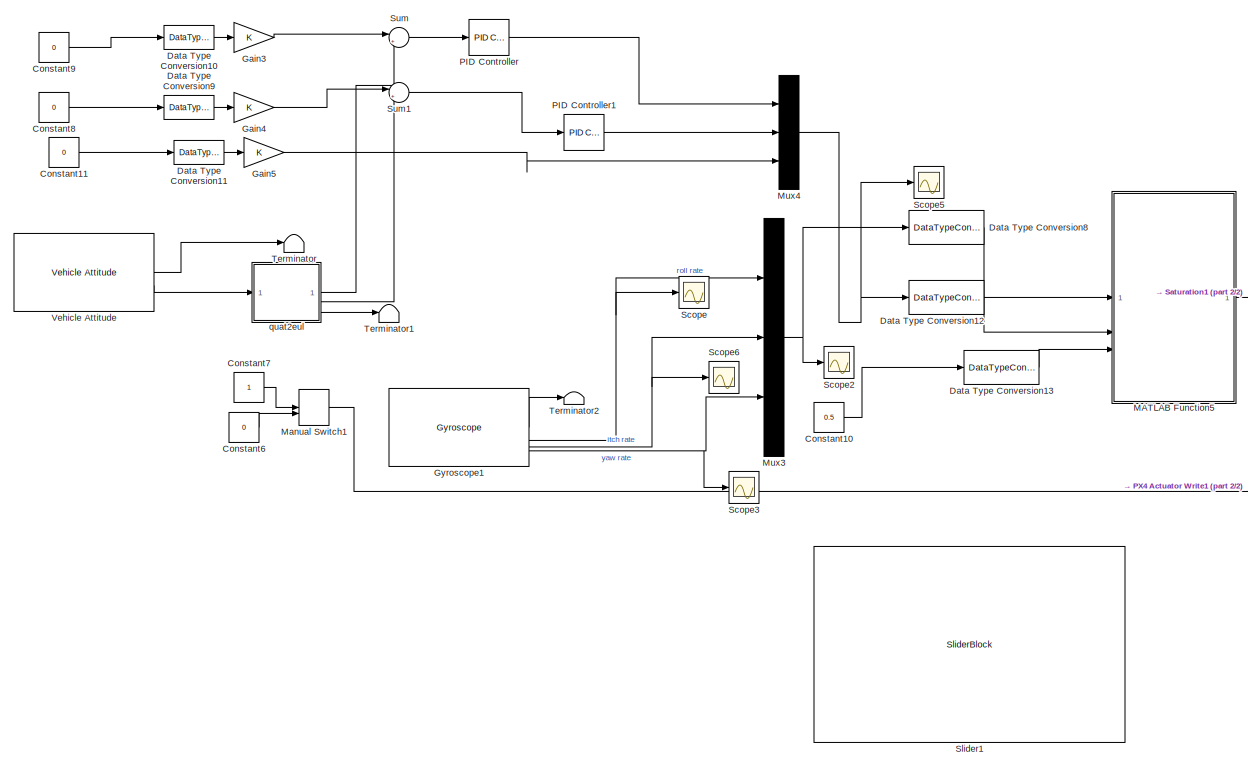
[diagram: root canvas - part 1/2, center side, full height]
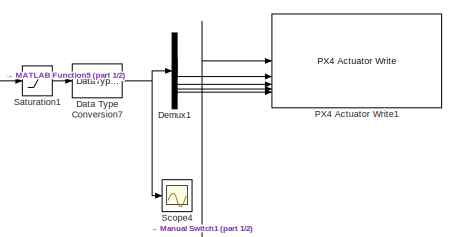
[diagram: root canvas - part 2/2, middle right region]
MODEL slx_2880800d65d6
KIND model
CONFIG AbsTol = auto
CONFIG EnableMultiTasking = on
CONFIG FixedStep = auto
CONFIG MaxStep = auto
CONFIG MinStep = auto
CONFIG PreLoadFcn = SampleTime = 1e-3;\nisUsingSimulinkMixer=true;\n
CONFIG RelTol = 1e-3
CONFIG SampleTimeConstraint = Unconstrained
CONFIG SolverName = FixedStepAuto
CONFIG StartTime = 0.0
CONFIG StopTime = inf
BLOCK [Constant] Constant10
  Value = 0.5
BLOCK [Constant] Constant11
  Value = 0
BLOCK [Constant] Constant6
  OutDataTypeStr = boolean
  Value = 0
BLOCK [Constant] Constant7
  OutDataTypeStr = boolean
BLOCK [Constant] Constant8
  Value = 0
BLOCK [Constant] Constant9
  Value = 0
BLOCK [DataTypeConversion] Data Type Conversion10
  OutDataTypeStr = single
  RndMeth = Floor
  SaturateOnIntegerOverflow = off
BLOCK [DataTypeConversion] Data Type Conversion11
  OutDataTypeStr = single
  RndMeth = Floor
  SaturateOnIntegerOverflow = off
BLOCK [DataTypeConversion] Data Type Conversion12
  LockScale = on
  OutDataTypeStr = double
  RndMeth = Floor
  SaturateOnIntegerOverflow = off
BLOCK [DataTypeConversion] Data Type Conversion13
  LockScale = on
  OutDataTypeStr = double
  RndMeth = Floor
  SaturateOnIntegerOverflow = off
BLOCK [DataTypeConversion] Data Type Conversion7
  OutDataTypeStr = single
  RndMeth = Floor
  SaturateOnIntegerOverflow = off
BLOCK [DataTypeConversion] Data Type Conversion8
  LockScale = on
  OutDataTypeStr = double
  RndMeth = Floor
  SaturateOnIntegerOverflow = off
BLOCK [DataTypeConversion] Data Type Conversion9
  OutDataTypeStr = single
  RndMeth = Floor
  SaturateOnIntegerOverflow = off
BLOCK [Demux] Demux1
BLOCK [Gain] Gain3
BLOCK [Gain] Gain4
BLOCK [Gain] Gain5
BLOCK [Reference] Gyroscope1  REF=px4Sensorslib/Gyroscope
  SourceBlock = px4Sensorslib/Gyroscope
  SourceType = PX4 Gyroscope
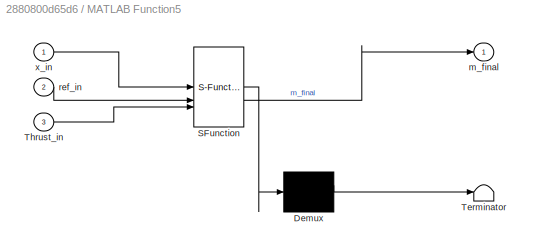
BLOCK [SubSystem] MATLAB Function5
  ErrorFcn = Stateflow.Translate.translate
  PermitHierarchicalResolution = ExplicitOnly
  SFBlockType = MATLAB Function
  TreatAsAtomicUnit = on
BLOCK [Demux] MATLAB Function5/ Demux 
  Outputs = 1
BLOCK [S-Function] MATLAB Function5/ SFunction 
  EnableBusSupport = off
  FunctionName = sf_sfun
  PortCounts = [3 2]
  SFcnIsStateOwnerBlock = off
  SFunctionDeploymentMode = off
  Tag = Stateflow S-Function 6
BLOCK [Terminator] MATLAB Function5/ Terminator 
BLOCK [Inport] MATLAB Function5/Thrust_in
  Port = 3
BLOCK [Outport] MATLAB Function5/m_final
  VectorParamsAs1DForOutWhenUnconnected = off
BLOCK [Inport] MATLAB Function5/ref_in
  Port = 2
BLOCK [Inport] MATLAB Function5/x_in
BLOCK [ManualSwitch] Manual Switch1
BLOCK [Mux] Mux3
  DisplayOption = bar
  Inputs = 3
BLOCK [Mux] Mux4
  DisplayOption = bar
  Inputs = 3
BLOCK [Reference] PID Controller  REF=slpidlib/PID Controller
  LibrarySourceBlock = simulink/Continuous/PID Controller
  SourceBlock = slpidlib/PID Controller
  SourceType = PID 1dof
BLOCK [Reference] PID Controller1  REF=slpidlib/PID Controller
  LibrarySourceBlock = simulink/Continuous/PID Controller
  SourceBlock = slpidlib/PID Controller
  SourceType = PID 1dof
BLOCK [Reference] PX4 Actuator Write1  REF=px4Peripheralslib/PX4 Actuator Write
  SourceBlock = px4Peripheralslib/PX4 Actuator Write
  SourceType = px4.internal.block.PX4Actuators
BLOCK [Saturate] Saturation1
  LowerLimit = 0
  UpperLimit = 1
BLOCK [Scope] Scope
  ActiveDisplayYMaximum = 0.043675837107002735
  ActiveDisplayYMinimum = -0.048647073097527027
  Floating = off
  GraphicalSettings = {"Style":{"BackgroundColor":[0.12941176470588237,0.12941176470588237,0.12941176470588237],"AxesColor":[0.07058823529411765,0.07058823529411765,0.07058823529411765],"LabelsColor":[0.8509803921568627,0.8509803921568627,0.8509803921568627],"PreserveColors":false,"Visible":[true],"LineStyle":["-"],"LineWidth":[1.5],"BarWidth":[0.9],"LineColor":["auto"],"LineFaceAlpha":[1],"LineEdgeAlpha":[1],"Marker":...<+2012ch>
  MultipleDisplayCache = [{"MaxYLimMag":0.048647073097527027,"MaxYLimReal":0.043675837107002735,"MinYLimMag":0,"MinYLimReal":-0.048647073097527027,"PlotAsMagnitudePhase":false,"ShowGrid":true,"ShowLegend":false,"Title":"%<SignalLabel>","YLabel":""}]
  NumInputPorts = 1
  ScopeFrameLocation = window
  WasSavedAsWebScope = on
  WindowPosition = [1183.000000,330.000000,560.000000,420.000000,]
BLOCK [Scope] Scope2
  ActiveDisplayYMaximum = 0.55083355307579041
  ActiveDisplayYMinimum = -0.62053689360618591
  DataLoggingVariableName = ScopeData1
  Floating = off
  GraphicalSettings = {"AxesScalingProperties":{"AlignXAxis":"Center","AlignYAxis":"Center","AutoScaleXAxisLimits":false,"AxesScaling":"Manual","AxesScalingNumUpdates":10,"ExpandOnly":true,"ScaleAxesLimitsAtStop":false,"XAxisDataRange":100,"YAxisDataRange":80},"DisplayProperties":{"ColorOrder":["auto","auto","auto","auto","auto","auto","auto","auto","auto","auto","auto","auto","auto","auto","auto","auto","auto","auto",...<+2509ch>
  MultipleDisplayCache = [{"MaxYLimMag":0.62053689360618591,"MaxYLimReal":0.55083355307579041,"MinYLimMag":0,"MinYLimReal":-0.62053689360618591,"PlotAsMagnitudePhase":false,"ShowGrid":true,"ShowLegend":false,"Title":"%<SignalLabel>","YLabel":""}]
  NumInputPorts = 1
  ScopeFrameLocation = window
  WasSavedAsWebScope = on
  WindowPosition = [680.000000,330.000000,560.000000,420.000000,]
BLOCK [Scope] Scope3
  ActiveDisplayYMaximum = 1
  ActiveDisplayYMinimum = -1
  DataLoggingVariableName = ScopeData3
  Floating = off
  GraphicalSettings = {"Style":{"BackgroundColor":[0.12941176470588237,0.12941176470588237,0.12941176470588237],"AxesColor":[0.07058823529411765,0.07058823529411765,0.07058823529411765],"LabelsColor":[0.8509803921568627,0.8509803921568627,0.8509803921568627],"PreserveColors":false,"Visible":[true],"LineStyle":["-"],"LineWidth":[1.5],"BarWidth":[0.9],"LineColor":["auto"],"LineFaceAlpha":[1],"LineEdgeAlpha":[1],"Marker":...<+1904ch>
  MultipleDisplayCache = [{"MaxYLimMag":1,"MaxYLimReal":1,"MinYLimMag":0,"MinYLimReal":-1,"PlotAsMagnitudePhase":false,"ShowGrid":true,"ShowLegend":false,"Title":"%<SignalLabel>","YLabel":""}]
  NumInputPorts = 1
  ScopeFrameLocation = window
  WasSavedAsWebScope = on
  WindowPosition = [680.000000,330.000000,560.000000,420.000000,]
BLOCK [Scope] Scope4
  ActiveDisplayYMaximum = 0.55490137269269046
  ActiveDisplayYMinimum = 0.057510972242240666
  ContainerLayout = {"WindowBounds":[2217,110,1312,848]}
  DataLoggingVariableName = ScopeData4
  Floating = off
  GraphicalSettings = {"AxesScalingProperties":{"AlignXAxis":"Center","AlignYAxis":"Center","AutoScaleXAxisLimits":false,"AxesScaling":"Manual","AxesScalingNumUpdates":10,"ExpandOnly":true,"ScaleAxesLimitsAtStop":false,"XAxisDataRange":100,"YAxisDataRange":80},"DisplayProperties":{"ColorOrder":["auto","auto","auto","auto","auto","auto","auto","auto","auto","auto","auto","auto","auto","auto","auto","auto","auto","auto",...<+2489ch>
  MultipleDisplayCache = [{"MaxYLimMag":0.68056044727563858,"MaxYLimReal":0.55490137269269046,"MinYLimMag":0,"MinYLimReal":0.057510972242240666,"PlotAsMagnitudePhase":false,"ShowGrid":true,"ShowLegend":true,"Title":"%<SignalLabel>","YLabel":""}]
  NumInputPorts = 1
  ScopeFrameLocation = container
  ShowLegend = on
  WasSavedAsWebScope = on
  WindowPosition = [2217.000000,122.000000,1312.000000,848.000000,]
BLOCK [Scope] Scope5
  ActiveDisplayYMaximum = 4.6404233658291121
  ActiveDisplayYMinimum = -3.3246570702222038
  DataLoggingVariableName = ScopeData5
  Floating = off
  GraphicalSettings = {"AxesScalingProperties":{"AlignXAxis":"Center","AlignYAxis":"Center","AutoScaleXAxisLimits":false,"AxesScaling":"Manual","AxesScalingNumUpdates":10,"ExpandOnly":true,"ScaleAxesLimitsAtStop":false,"XAxisDataRange":100,"YAxisDataRange":80},"DisplayProperties":{"ColorOrder":["auto","auto","auto","auto","auto","auto","auto","auto","auto","auto","auto","auto","auto","auto","auto","auto","auto","auto",...<+2119ch>
  MultipleDisplayCache = [{"MaxYLimMag":3.9174287915229797,"MaxYLimReal":4.6404233658291121,"MinYLimMag":0,"MinYLimReal":-3.3246570702222038,"PlotAsMagnitudePhase":false,"ShowGrid":true,"ShowLegend":false,"Title":"%<SignalLabel>","YLabel":""}]
  NumInputPorts = 1
  ScopeFrameLocation = window
  WasSavedAsWebScope = on
  WindowPosition = [1.000000,41.000000,1920.000000,1017.000000,]
BLOCK [Scope] Scope6
  ActiveDisplayYMaximum = 1
  ActiveDisplayYMinimum = -1
  DataLoggingVariableName = ScopeData6
  Floating = off
  GraphicalSettings = {"Style":{"BackgroundColor":[0.12941176470588237,0.12941176470588237,0.12941176470588237],"AxesColor":[0.07058823529411765,0.07058823529411765,0.07058823529411765],"LabelsColor":[0.8509803921568627,0.8509803921568627,0.8509803921568627],"PreserveColors":false,"Visible":[true],"LineStyle":["-"],"LineWidth":[1.5],"BarWidth":[0.9],"LineColor":["auto"],"LineFaceAlpha":[1],"LineEdgeAlpha":[1],"Marker":...<+1908ch>
  MultipleDisplayCache = [{"MaxYLimMag":1,"MaxYLimReal":1,"MinYLimMag":0,"MinYLimReal":-1,"PlotAsMagnitudePhase":false,"ShowGrid":true,"ShowLegend":false,"Title":"%<SignalLabel>","YLabel":""}]
  NumInputPorts = 1
  ScopeFrameLocation = window
  WasSavedAsWebScope = on
  WindowPosition = [680.000000,330.000000,560.000000,420.000000,]
BLOCK [SliderBlock] Slider1
  ScaleMax = 0.6
BLOCK [Sum] Sum
  Inputs = |+-
BLOCK [Sum] Sum1
  Inputs = |+-
BLOCK [Terminator] Terminator
BLOCK [Terminator] Terminator1
BLOCK [Terminator] Terminator2
BLOCK [Reference] Vehicle Attitude  REF=px4Sensorslib/Vehicle Attitude
  SourceBlock = px4Sensorslib/Vehicle Attitude
  SourceType = PX4 Vehicle Attitude
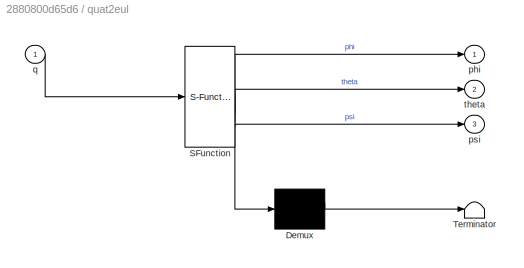
BLOCK [SubSystem] quat2eul
  ErrorFcn = Stateflow.Translate.translate
  PermitHierarchicalResolution = ExplicitOnly
  SFBlockType = MATLAB Function
  TreatAsAtomicUnit = on
BLOCK [Demux] quat2eul/ Demux 
  Outputs = 1
BLOCK [S-Function] quat2eul/ SFunction 
  EnableBusSupport = off
  FunctionName = sf_sfun
  PortCounts = [1 4]
  SFcnIsStateOwnerBlock = off
  SFunctionDeploymentMode = off
  Tag = Stateflow S-Function 10
BLOCK [Terminator] quat2eul/ Terminator 
BLOCK [Outport] quat2eul/phi
  VectorParamsAs1DForOutWhenUnconnected = off
BLOCK [Outport] quat2eul/psi
  Port = 3
  VectorParamsAs1DForOutWhenUnconnected = off
BLOCK [Inport] quat2eul/q
BLOCK [Outport] quat2eul/theta
  Port = 2
  VectorParamsAs1DForOutWhenUnconnected = off
LINE Constant10:1 -> Data Type Conversion13:1
LINE Constant11:1 -> Data Type Conversion11:1
LINE Constant6:1 -> Manual Switch1:2
LINE Constant7:1 -> Manual Switch1:1
LINE Constant8:1 -> Data Type Conversion9:1
LINE Constant9:1 -> Data Type Conversion10:1
LINE Data Type Conversion10:1 -> Gain3:1
LINE Data Type Conversion11:1 -> Gain5:1
LINE Data Type Conversion12:1 -> MATLAB Function5:2
LINE Data Type Conversion13:1 -> MATLAB Function5:3
NET Data Type Conversion7:1 -> Demux1:1, Scope4:1
LINE Data Type Conversion8:1 -> MATLAB Function5:1
LINE Data Type Conversion9:1 -> Gain4:1
LINE Demux1:1 -> PX4 Actuator Write1:2
LINE Demux1:2 -> PX4 Actuator Write1:3
LINE Demux1:3 -> PX4 Actuator Write1:4
LINE Demux1:4 -> PX4 Actuator Write1:5
LINE Gain3:1 -> Sum:1
LINE Gain4:1 -> Sum1:1
LINE Gain5:1 -> Mux4:3
LINE Gyroscope1:1 -> Terminator2:1
NET Gyroscope1:2 -> Mux3:1, Scope:1
NET Gyroscope1:3 -> Mux3:2, Scope6:1
NET Gyroscope1:4 -> Mux3:3, Scope3:1
LINE MATLAB Function5:1 -> Saturation1:1
LINE Manual Switch1:1 -> PX4 Actuator Write1:1
NET Mux3:1 -> Data Type Conversion8:1, Scope2:1
NET Mux4:1 -> Data Type Conversion12:1, Scope5:1
LINE PID Controller1:1 -> Mux4:2
LINE PID Controller:1 -> Mux4:1
LINE Saturation1:1 -> Data Type Conversion7:1
LINE Sum1:1 -> PID Controller1:1
LINE Sum:1 -> PID Controller:1
LINE Vehicle Attitude:1 -> Terminator:1
LINE Vehicle Attitude:2 -> quat2eul:1
LINE quat2eul:1 -> Sum:2
LINE quat2eul:2 -> Sum1:2
LINE quat2eul:3 -> Terminator1:1
note: NET lines group one-source signal fan-out (src -> all destinations, sorted); 1:1 wires keep LINE
CHART MATLAB Function5 states=1 transitions=1
  STATE_LABEL 'eML_blk_kernel()'
  STATE_LABEL 'SCRIPT:\nfunction m_final = fcn(x_in, ref_in, Thrust_in)\n%#codegen\n\n% --- CONFIGURACIÓN ESTÁTICA ---\npersistent A B Phi F_f H M options lb ub Q_big\n    \nif isempty(A)\n    % 1. Matrices del sistema\n    A = [-0.935710267868369\t0.114535661043099\t4.926101069998020;\n        -0.003429981478181\t-1.040331777969572\t2.779697729794189;\n        -0.093493041620156\t-0.275240626618720\t1.498523193279717];\n    B = ...<+1780ch>'
CHART quat2eul states=1 transitions=1
  STATE_LABEL 'eML_blk_kernel()'
  STATE_LABEL 'SCRIPT:\nfunction [phi,theta,psi] = quat2eul(q)\n\n% Quaternion conversion to Euler angles based on the PX4 Firmware v1.10.2\n% release.\n\nphi = atan2(2*(q(1)*q(2) + q(3)* q(4)), q(1)^2 - q(2)^2 - q(3)^2 + q(4)^2);\ntheta = asin(-2*(q(2)*q(4) - q(1)*q(3)));\npsi = atan2(2*(q(2)*q(3) + q(1)* q(4)), q(1)^2 + q(2)^2 - q(3)^2 - q(4)^2);\nend'
CHART  states=0 transitions=0
CHART  states=0 transitions=0
